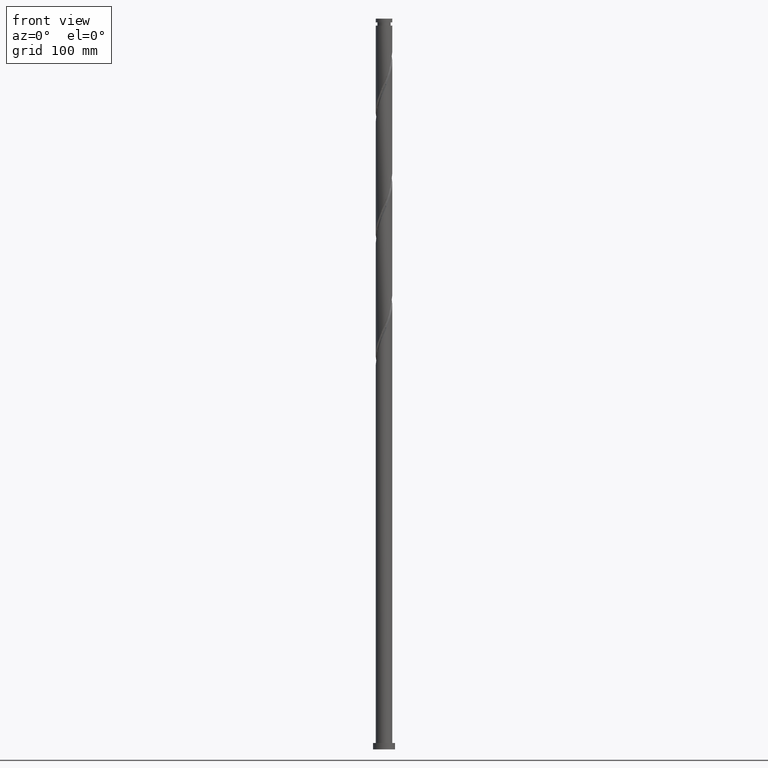
[diagram: clean part render]
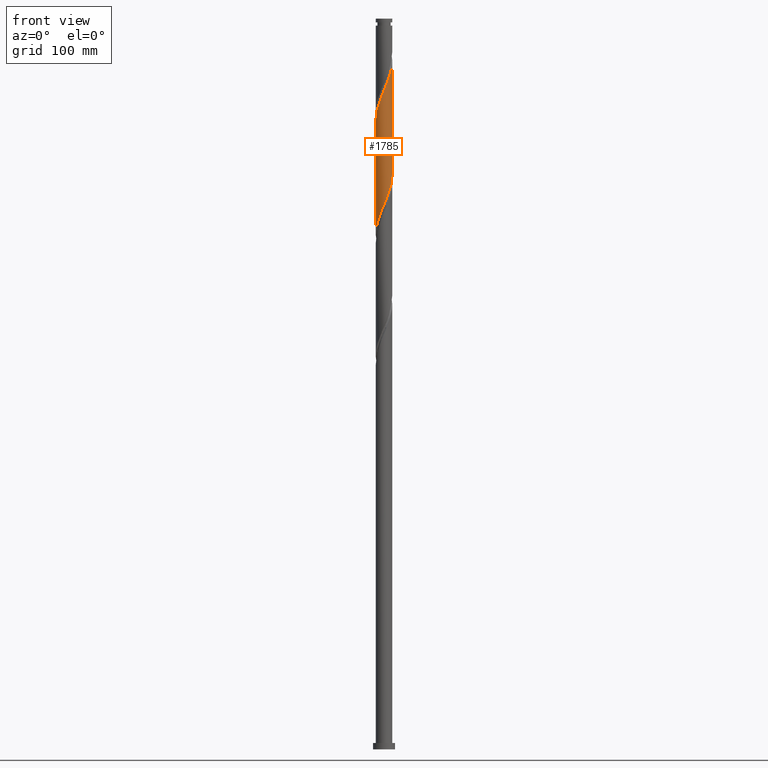
[diagram: same view with one face highlighted and labeled with its STEP entity id]
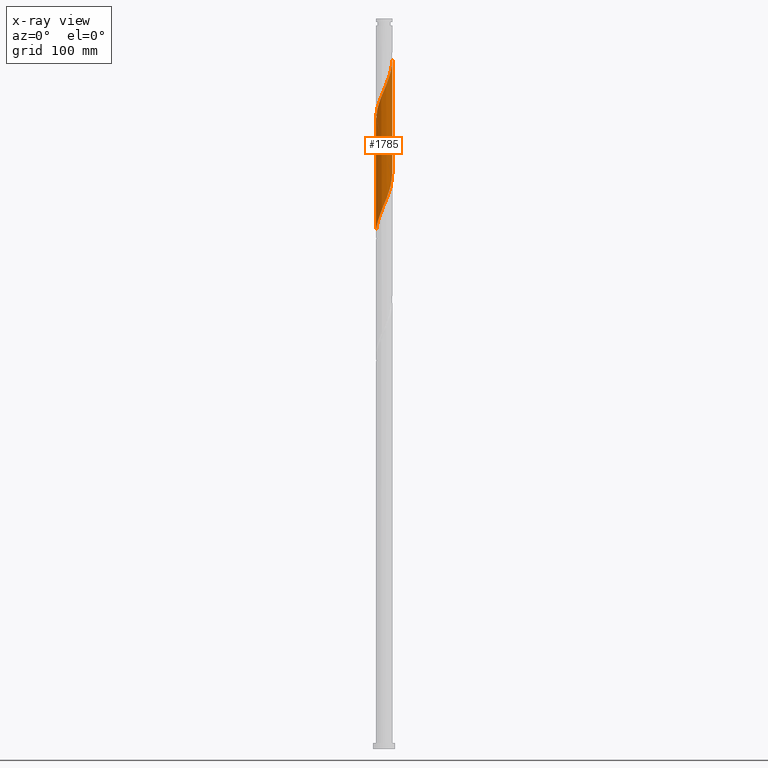
[diagram: x-ray of the same camera — body ghosted, the highlighted face saturated]
A machine part, front view. The second image highlights one B-rep face of the part: STEP entity #1785.
The next image is the same camera in x-ray: the body ghosted, the highlighted face saturated — about 0% of this face is hidden behind the body in this view.
In plain terms, the highlighted cylindrical surface (edge-blend (fillet) strip) has radius 9 mm, axis along (-0, -0, -1).
Its self-contained STEP definition (entity closure, byte-faithful):
#4 = CARTESIAN_POINT ( 'NONE',  ( 9.000000000000001776, 1.102182119232617911E-15, 800.0000000000000000 ) ) ;
#8 = CARTESIAN_POINT ( 'NONE',  ( 5.880262290745527309, -6.854099156856493735, 611.6153200829146499 ) ) ;
#12 = DIRECTION ( 'NONE',  ( -1.000000000000000000, 0.000000000000000000, 0.000000000000000000 ) ) ;
#16 = CARTESIAN_POINT ( 'NONE',  ( 9.000000000000000000, -4.807045443360459022E-15, 629.9023400030018820 ) ) ;
#25 = CARTESIAN_POINT ( 'NONE',  ( -8.954220682007743903, -1.173921563772243770, 566.0012849951951921 ) ) ;
#84 = CARTESIAN_POINT ( 'NONE',  ( -9.000000000000010658, -8.180934481246954184E-15, 688.0651422680907672 ) ) ;
#108 = CARTESIAN_POINT ( 'NONE',  ( -6.404236555330750313, -6.323428986188232237, 704.5977762232656687 ) ) ;
#203 = CARTESIAN_POINT ( 'NONE',  ( 2.622738405899098346, -8.609369503873200102, 602.8433902583532245 ) ) ;
#213 = CARTESIAN_POINT ( 'NONE',  ( -5.772973607274879626, -6.904547467409264172, 581.7907586794059398 ) ) ;
#262 = VERTEX_POINT ( 'NONE', #1502 ) ;
#275 = CARTESIAN_POINT ( 'NONE',  ( -7.357693319166369150, -5.183082964905616485, 701.0890042934411213 ) ) ;
#288 = CARTESIAN_POINT ( 'NONE',  ( -3.336131102201621790, -8.392043203470052504, 713.3697060478269805 ) ) ;
#301 = CARTESIAN_POINT ( 'NONE',  ( -1.169912026461562116, -8.923637478648537069, 718.6328639425636311 ) ) ;
#312 = CARTESIAN_POINT ( 'NONE',  ( 9.000000000000010658, 6.329774124176475316E-15, 754.7318089347575096 ) ) ;
#330 = CARTESIAN_POINT ( 'NONE',  ( 8.087884598390568058, -4.017745958009479423, 744.9486534162477938 ) ) ;
#357 = CARTESIAN_POINT ( 'NONE',  ( 5.200846492471891125, -7.382909698873995730, 734.4223376267742651 ) ) ;
#374 = CARTESIAN_POINT ( 'NONE',  ( 6.404236555330742320, -6.323428986188227796, 613.3697060478267531 ) ) ;
#383 = CARTESIAN_POINT ( 'NONE',  ( 0.4304783433265346737, -9.020579153020694463, 597.5802323636160054 ) ) ;
#392 = CARTESIAN_POINT ( 'NONE',  ( -1.790977386791926307, -8.820000000000002061, 592.3170744688794684 ) ) ;
#421 = CARTESIAN_POINT ( 'NONE',  ( -9.000000000000012434, -0.5300877757808888369, 689.3156693822760417 ) ) ;
#445 = ORIENTED_EDGE ( 'NONE', *, *, #1828, .F. ) ;
#446 = CARTESIAN_POINT ( 'NONE',  ( -9.000000000000005329, 1.283869279903725074E-15, 563.2356733363351395 ) ) ;
#456 = CARTESIAN_POINT ( 'NONE',  ( -8.937772968675862018, -1.056510463936469968, 690.5626885039673652 ) ) ;
#504 = CARTESIAN_POINT ( 'NONE',  ( 6.345100722077872568, -6.426185235944554819, 737.9311095565988126 ) ) ;
#529 = CARTESIAN_POINT ( 'NONE',  ( 7.702080871409623164, -4.655958574801344341, 743.1942674513358043 ) ) ;
#540 = DIRECTION ( 'NONE',  ( -0.000000000000000000, -0.000000000000000000, -1.000000000000000000 ) ) ;
#545 = CARTESIAN_POINT ( 'NONE',  ( 8.110451389330124883, -3.901355951629267516, 620.3872499074758480 ) ) ;
#567 = CARTESIAN_POINT ( 'NONE',  ( 5.276088912864417502, -7.291288348676741471, 609.8609341180024330 ) ) ;
#576 = CARTESIAN_POINT ( 'NONE',  ( 4.004023318592468961, -8.060260371983513750, 606.3521621881778856 ) ) ;
#588 = EDGE_LOOP ( 'NONE', ( #445, #2050, #950, #1131 ) ) ;
#589 = CARTESIAN_POINT ( 'NONE',  ( -9.000000000000003553, -0.2146260082065093167, 563.7419963547753241 ) ) ;
#601 = CARTESIAN_POINT ( 'NONE',  ( -1.909345709596586449, -8.826695804276367241, 716.8784779776514142 ) ) ;
#720 = CYLINDRICAL_SURFACE ( 'NONE', #1404, 9.000000000000001776 ) ;
#746 = CARTESIAN_POINT ( 'NONE',  ( -6.830688933253270534, -5.860178213768870492, 578.2819867495812787 ) ) ;
#757 = CARTESIAN_POINT ( 'NONE',  ( -2.521823423607691517, -8.671595382634517790, 590.5626885039672516 ) ) ;
#767 = CARTESIAN_POINT ( 'NONE',  ( -7.702080871409618723, -4.655958574801333683, 574.7732148197567312 ) ) ;
#814 = CARTESIAN_POINT ( 'NONE',  ( -8.641977487961812088, -2.513210118068413657, 694.0714604337919127 ) ) ;
#826 = CARTESIAN_POINT ( 'NONE',  ( -8.850228015680128735, -1.797115447169554736, 692.3170744688795821 ) ) ;
#849 = CARTESIAN_POINT ( 'NONE',  ( 0.3148265033248102696, -8.994491885193095726, 722.1416358723881785 ) ) ;
#863 = CARTESIAN_POINT ( 'NONE',  ( 8.363380121220270524, -3.324736523091387230, 746.7030393811603517 ) ) ;
#887 = CARTESIAN_POINT ( 'NONE',  ( 2.521823423607686632, -8.671595382634528448, 727.4047937671250565 ) ) ;
#894 = VERTEX_POINT ( 'NONE', #2290 ) ;
#916 = CARTESIAN_POINT ( 'NONE',  ( 8.937772968675853136, -1.056510463936469968, 627.4047937671250565 ) ) ;
#922 = CARTESIAN_POINT ( 'NONE',  ( -3.218275075876960045, -8.404921506830934419, 588.8083025390550347 ) ) ;
#932 = CARTESIAN_POINT ( 'NONE',  ( -8.363380121220265195, -3.324736523091380125, 571.2644428899321838 ) ) ;
#941 = CARTESIAN_POINT ( 'NONE',  ( -7.316277144428673829, -5.294171191593195935, 576.5276007846689481 ) ) ;
#950 = ORIENTED_EDGE ( 'NONE', *, *, #1535, .T. ) ;
#1025 = CARTESIAN_POINT ( 'NONE',  ( 8.796548163028864664, -1.902824325972774178, 750.2118113109847855 ) ) ;
#1037 = CARTESIAN_POINT ( 'NONE',  ( 1.790977386791925419, -8.820000000000007390, 725.6504078022129534 ) ) ;
#1052 = CARTESIAN_POINT ( 'NONE',  ( 1.060131349976159765, -8.968404617365488107, 723.8960218373003954 ) ) ;
#1096 = CARTESIAN_POINT ( 'NONE',  ( 1.909345709596577345, -8.826695804276358359, 601.0890042934408939 ) ) ;
#1104 = CARTESIAN_POINT ( 'NONE',  ( -0.3148265033248133782, -8.994491885193088621, 595.8258463987040159 ) ) ;
#1118 = CARTESIAN_POINT ( 'NONE',  ( 0.000000000000000000, 0.000000000000000000, 800.0000000000000000 ) ) ;
#1122 = CARTESIAN_POINT ( 'NONE',  ( 6.928210819915951113, -5.792758815519967186, 615.1240920127391973 ) ) ;
#1131 = ORIENTED_EDGE ( 'NONE', *, *, #1295, .F. ) ;
#1145 = CARTESIAN_POINT ( 'NONE',  ( -8.110451389330130212, -3.901355951629270624, 697.5802323636165738 ) ) ;
#1159 = CARTESIAN_POINT ( 'NONE',  ( -4.671915534983323681, -7.728477540496988318, 709.8609341180023193 ) ) ;
#1204 = VECTOR ( 'NONE', #1332, 1000.000000000000000 ) ;
#1287 = DIRECTION ( 'NONE',  ( -0.000000000000000000, -0.000000000000000000, -1.000000000000000000 ) ) ;
#1292 = CARTESIAN_POINT ( 'NONE',  ( 3.336131102201616017, -8.392043203470045398, 604.5977762232653276 ) ) ;
#1295 = EDGE_CURVE ( 'NONE', #262, #1685, #1891, .T. ) ;
#1319 = CARTESIAN_POINT ( 'NONE',  ( -3.914726728146230350, -8.138247631027351048, 587.0539165741427041 ) ) ;
#1332 = DIRECTION ( 'NONE',  ( -0.000000000000000000, -0.000000000000000000, -1.000000000000000000 ) ) ;
#1404 = AXIS2_PLACEMENT_3D ( 'NONE', #1118, #1287, #12 ) ;
#1433 = CARTESIAN_POINT ( 'NONE',  ( -9.000000000000005329, 1.283869279903725074E-15, 563.2356733363351395 ) ) ;
#1454 = LINE ( 'NONE', #4, #1814 ) ;
#1479 = CARTESIAN_POINT ( 'NONE',  ( 7.357693319166356716, -5.183082964905617374, 616.8784779776514142 ) ) ;
#1485 =( BOUNDED_CURVE ( )  B_SPLINE_CURVE ( 2, ( #84, #421, #456, #826, #814, #1534, #1145, #2087, #275, #1555, #108, #2285, #1875, #1159, #1890, #288, #2239, #601, #301, #2322, #849, #1052, #1037, #887, #2157, #1940, #2170, #357, #1617, #504, #2146, #2123, #529, #330, #863, #2348, #1025, #1968, #1951, #1581, #312 ),
 .UNSPECIFIED., .F., .T. ) 
 B_SPLINE_CURVE_WITH_KNOTS ( ( 3, 2, 2, 2, 2, 2, 2, 2, 2, 2, 2, 2, 2, 2, 2, 2, 2, 2, 2, 2, 3 ),
 ( 0.5545295809515953245, 0.5592105263157894912, 0.5657894736842105088, 0.5723684210526316374, 0.5789473684210526550, 0.5855263157894736725, 0.5921052631578946901, 0.5986842105263157077, 0.6052631578947368363, 0.6118421052631579649, 0.6184210526315789824, 0.6250000000000000000, 0.6315789473684210176, 0.6381578947368420351, 0.6447368421052631637, 0.6513157894736842923, 0.6578947368421053099, 0.6644736842105263275, 0.6710526315789473450, 0.6776315789473683626, 0.6795295809515955465 ),
 .UNSPECIFIED. ) 
 CURVE ( )  GEOMETRIC_REPRESENTATION_ITEM ( )  RATIONAL_B_SPLINE_CURVE ( ( 0.9078162034606223063, 0.9068816855934294097, 0.9090909090909511381, 0.9059859027333782011, 0.9090909090909511381, 0.9059859027333782011, 0.9090909090909511381, 0.9059859027333782011, 0.9090909090909511381, 0.9059859027333782011, 0.9090909090909511381, 0.9059859027333782011, 0.9090909090909511381, 0.9059859027333782011, 0.9090909090909511381, 0.9059859027333782011, 0.9090909090909511381, 0.9059859027333782011, 0.9090909090909511381, 0.9059859027333782011, 0.9090909090909511381, 0.9059859027333782011, 0.9090909090909511381, 0.9059859027333782011, 0.9090909090909511381, 0.9059859027333782011, 0.9090909090909511381, 0.9059859027333782011, 0.9090909090909511381, 0.9059859027333782011, 0.9090909090909511381, 0.9059859027333782011, 0.9090909090909511381, 0.9059859027333782011, 0.9090909090909511381, 0.9059859027333782011, 0.9090909090909511381, 0.9059859027333782011, 0.9090909090909511381, 0.9081951262308998185, 0.9078162034606223063 ) ) 
 REPRESENTATION_ITEM ( '' )  );
#1496 = VERTEX_POINT ( 'NONE', #1721 ) ;
#1499 = CARTESIAN_POINT ( 'NONE',  ( -8.796548163028855782, -1.902824325972765962, 567.7556709601076363 ) ) ;
#1502 = CARTESIAN_POINT ( 'NONE',  ( 9.000000000000000000, -4.807045443360459022E-15, 629.9023400030018820 ) ) ;
#1534 = CARTESIAN_POINT ( 'NONE',  ( -8.433726960243495441, -3.229304788967272355, 695.8258463987041296 ) ) ;
#1535 = EDGE_CURVE ( 'NONE', #894, #1685, #1709, .T. ) ;
#1555 = CARTESIAN_POINT ( 'NONE',  ( -6.928210819915963548, -5.792758815519967186, 702.8433902583533381 ) ) ;
#1580 = EDGE_CURVE ( 'NONE', #894, #1496, #1485, .T. ) ;
#1581 = CARTESIAN_POINT ( 'NONE',  ( 9.000000000000012434, -0.2146260082065032937, 754.2254859163173251 ) ) ;
#1617 = CARTESIAN_POINT ( 'NONE',  ( 5.772973607274883179, -6.904547467409275718, 736.1767235916865957 ) ) ;
#1646 = CARTESIAN_POINT ( 'NONE',  ( 8.433726960243481230, -3.229304788967275908, 622.1416358723885196 ) ) ;
#1654 = CARTESIAN_POINT ( 'NONE',  ( -4.557786610309058517, -7.760578664950666727, 585.2995306092304872 ) ) ;
#1664 = CARTESIAN_POINT ( 'NONE',  ( -8.638875644049964109, -2.631727088173291040, 569.5100569250198532 ) ) ;
#1685 = VERTEX_POINT ( 'NONE', #1433 ) ;
#1709 = LINE ( 'NONE', #2261, #1204 ) ;
#1721 = CARTESIAN_POINT ( 'NONE',  ( 9.000000000000010658, 6.329774124176475316E-15, 754.7318089347575096 ) ) ;
#1785 = ADVANCED_FACE ( 'NONE', ( #1797 ), #720, .T. ) ;
#1797 = FACE_OUTER_BOUND ( 'NONE', #588, .T. ) ;
#1814 = VECTOR ( 'NONE', #540, 1000.000000000000000 ) ;
#1828 = EDGE_CURVE ( 'NONE', #1496, #262, #1454, .T. ) ;
#1832 = CARTESIAN_POINT ( 'NONE',  ( -1.060131349976165094, -8.968404617365475673, 594.0714604337915716 ) ) ;
#1839 = CARTESIAN_POINT ( 'NONE',  ( -8.087884598390560953, -4.017745958009474094, 573.0188288548444007 ) ) ;
#1851 = CARTESIAN_POINT ( 'NONE',  ( -5.200846492471890237, -7.382909698873985960, 583.5451446443180430 ) ) ;
#1875 = CARTESIAN_POINT ( 'NONE',  ( -5.276088912864429936, -7.291288348676742359, 708.1065481530899888 ) ) ;
#1890 = CARTESIAN_POINT ( 'NONE',  ( -4.004023318592473402, -8.060260371983519079, 711.6153200829146499 ) ) ;
#1891 =( BOUNDED_CURVE ( )  B_SPLINE_CURVE ( 2, ( #16, #2219, #916, #2187, #2042, #1646, #545, #2006, #1479, #1122, #374, #8, #567, #2031, #576, #1292, #203, #1096, #2019, #383, #1104, #1832, #392, #757, #922, #1319, #1654, #1851, #213, #2208, #746, #941, #767, #1839, #932, #1664, #1499, #25, #2229, #589, #446 ),
 .UNSPECIFIED., .F., .T. ) 
 B_SPLINE_CURVE_WITH_KNOTS ( ( 3, 2, 2, 2, 2, 2, 2, 2, 2, 2, 2, 2, 2, 2, 2, 2, 2, 2, 2, 2, 3 ),
 ( 0.5545295809515956575, 0.5592105263157894912, 0.5657894736842105088, 0.5723684210526315264, 0.5789473684210526550, 0.5855263157894736725, 0.5921052631578946901, 0.5986842105263158187, 0.6052631578947368363, 0.6118421052631578538, 0.6184210526315789824, 0.6250000000000000000, 0.6315789473684210176, 0.6381578947368421462, 0.6447368421052631637, 0.6513157894736841813, 0.6578947368421053099, 0.6644736842105263275, 0.6710526315789473450, 0.6776315789473684736, 0.6795295809515955465 ),
 .UNSPECIFIED. ) 
 CURVE ( )  GEOMETRIC_REPRESENTATION_ITEM ( )  RATIONAL_B_SPLINE_CURVE ( ( 0.9078162034606180875, 0.9068816855934254129, 0.9090909090909469192, 0.9059859027333740933, 0.9090909090909469192, 0.9059859027333740933, 0.9090909090909469192, 0.9059859027333740933, 0.9090909090909469192, 0.9059859027333740933, 0.9090909090909469192, 0.9059859027333740933, 0.9090909090909469192, 0.9059859027333740933, 0.9090909090909469192, 0.9059859027333740933, 0.9090909090909469192, 0.9059859027333740933, 0.9090909090909469192, 0.9059859027333740933, 0.9090909090909469192, 0.9059859027333740933, 0.9090909090909469192, 0.9059859027333740933, 0.9090909090909469192, 0.9059859027333740933, 0.9090909090909469192, 0.9059859027333740933, 0.9090909090909469192, 0.9059859027333740933, 0.9090909090909469192, 0.9059859027333740933, 0.9090909090909469192, 0.9059859027333740933, 0.9090909090909469192, 0.9059859027333740933, 0.9090909090909469192, 0.9059859027333740933, 0.9090909090909469192, 0.9081951262308955997, 0.9078162034606180875 ) ) 
 REPRESENTATION_ITEM ( '' )  );
#1940 = CARTESIAN_POINT ( 'NONE',  ( 3.914726728146227686, -8.138247631027358153, 730.9135656969497177 ) ) ;
#1951 = CARTESIAN_POINT ( 'NONE',  ( 8.989769301839674043, -0.4290080415344302289, 753.7205832408094466 ) ) ;
#1968 = CARTESIAN_POINT ( 'NONE',  ( 8.954220682007752785, -1.173921563772247767, 751.9661972758972297 ) ) ;
#2006 = CARTESIAN_POINT ( 'NONE',  ( 7.787175818416761430, -4.573407114291266673, 618.6328639425637448 ) ) ;
#2019 = CARTESIAN_POINT ( 'NONE',  ( 1.169912026461557675, -8.923637478648528187, 599.3346183285289044 ) ) ;
#2031 = CARTESIAN_POINT ( 'NONE',  ( 4.671915534983316576, -7.728477540496982101, 608.1065481530901025 ) ) ;
#2042 = CARTESIAN_POINT ( 'NONE',  ( 8.641977487961801430, -2.513210118068416321, 623.8960218373005091 ) ) ;
#2050 = ORIENTED_EDGE ( 'NONE', *, *, #1580, .F. ) ;
#2087 = CARTESIAN_POINT ( 'NONE',  ( -7.787175818416772088, -4.573407114291269338, 699.3346183285285633 ) ) ;
#2123 = CARTESIAN_POINT ( 'NONE',  ( 7.316277144428680046, -5.294171191593203929, 741.4398814864232463 ) ) ;
#2146 = CARTESIAN_POINT ( 'NONE',  ( 6.830688933253277639, -5.860178213768877598, 739.6854955215109158 ) ) ;
#2157 = CARTESIAN_POINT ( 'NONE',  ( 3.218275075876959157, -8.404921506830946853, 729.1591797320375008 ) ) ;
#2170 = CARTESIAN_POINT ( 'NONE',  ( 4.557786610309060293, -7.760578664950677386, 732.6679516618619346 ) ) ;
#2187 = CARTESIAN_POINT ( 'NONE',  ( 8.850228015680121629, -1.797115447169556068, 625.6504078022129534 ) ) ;
#2208 = CARTESIAN_POINT ( 'NONE',  ( -6.345100722077868127, -6.426185235944545049, 580.0363727144936092 ) ) ;
#2219 = CARTESIAN_POINT ( 'NONE',  ( 8.999999999999998224, -0.5300877757809222546, 628.6518128888164938 ) ) ;
#2229 = CARTESIAN_POINT ( 'NONE',  ( -8.989769301839663385, -0.4290080415344290077, 564.2468990302829752 ) ) ;
#2239 = CARTESIAN_POINT ( 'NONE',  ( -2.622738405899103675, -8.609369503873207208, 715.1240920127390837 ) ) ;
#2261 = CARTESIAN_POINT ( 'NONE',  ( -9.000000000000001776, 0.000000000000000000, 800.0000000000000000 ) ) ;
#2285 = CARTESIAN_POINT ( 'NONE',  ( -5.880262290745535303, -6.854099156856499064, 706.3521621881777719 ) ) ;
#2290 = CARTESIAN_POINT ( 'NONE',  ( -9.000000000000010658, -8.180934481246954184E-15, 688.0651422680907672 ) ) ;
#2322 = CARTESIAN_POINT ( 'NONE',  ( -0.4304783433265422232, -9.020579153020705121, 720.3872499074759617 ) ) ;
#2348 = CARTESIAN_POINT ( 'NONE',  ( 8.638875644049969438, -2.631727088173299034, 748.4574253460723412 ) ) ;